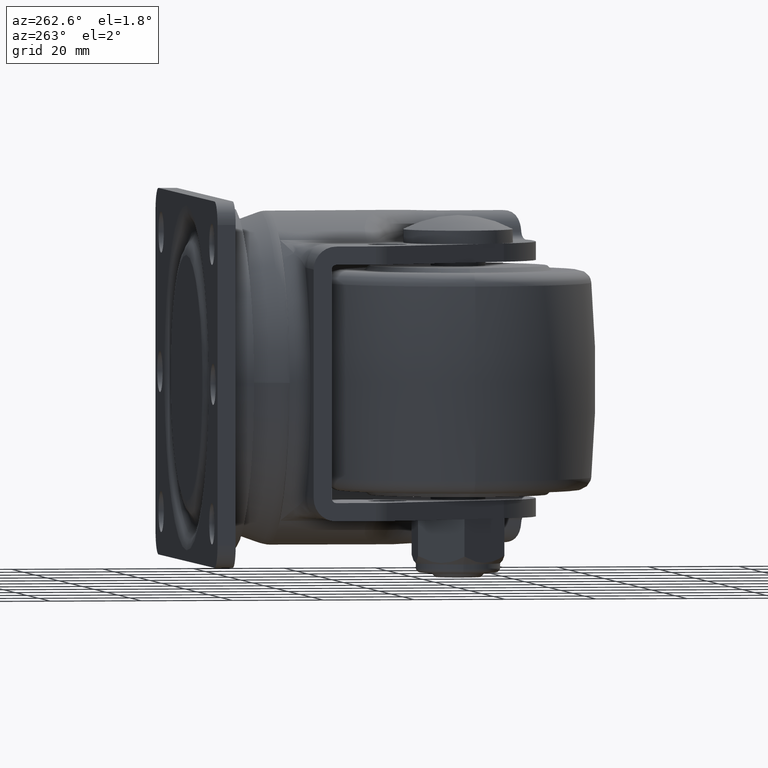
[diagram: clean part render]
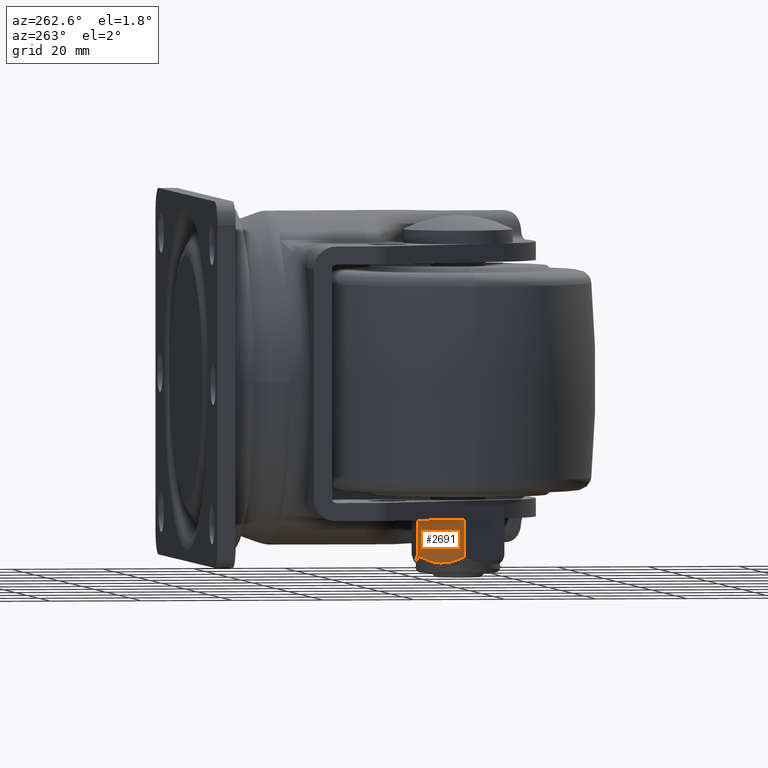
[diagram: same view with one face highlighted and labeled with its STEP entity id]
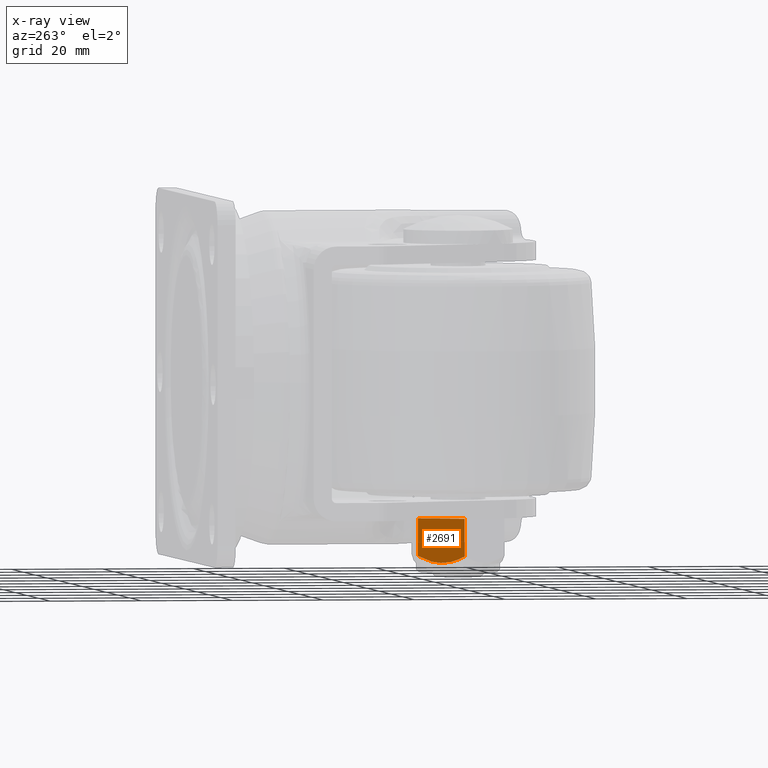
[diagram: x-ray of the same camera — body ghosted, the highlighted face saturated]
A machine part, auxiliary view. The second image highlights one B-rep face of the part: STEP entity #2691.
The next image is the same camera in x-ray: the body ghosted, the highlighted face saturated — about 0% of this face is hidden behind the body in this view.
In plain terms, the highlighted planar face has unit normal (0.866, -0.5, 0).
Its self-contained STEP definition (entity closure, byte-faithful):
#365 = CARTESIAN_POINT ( 'NONE',  ( -6.351581188495198482, 7.998738673127607335, -39.02325596749304992 ) ) ;
#426 = CARTESIAN_POINT ( 'NONE',  ( -8.695956990923257024, 3.938160671287151970, -39.70201385850177189 ) ) ;
#737 = LINE ( 'NONE', #3604, #1427 ) ;
#1151 = ORIENTED_EDGE ( 'NONE', *, *, #3512, .F. ) ;
#1174 = VECTOR ( 'NONE', #6055, 1000.000000000000000 ) ;
#1381 = CARTESIAN_POINT ( 'NONE',  ( -10.53858812322459571, 0.7466299305330630354, -38.66141187677549595 ) ) ;
#1427 = VECTOR ( 'NONE', #2043, 1000.000000000000000 ) ;
#1571 = EDGE_CURVE ( 'NONE', #5360, #2621, #3037, .T. ) ;
#1633 = VECTOR ( 'NONE', #1970, 1000.000000000000000 ) ;
#1684 = ORIENTED_EDGE ( 'NONE', *, *, #6154, .T. ) ;
#1753 = CARTESIAN_POINT ( 'NONE',  ( -10.96965511460288845, 3.469446951953614189E-15, -30.00000000000000000 ) ) ;
#1896 = CARTESIAN_POINT ( 'NONE',  ( -5.484827557301447776, 9.500000000000001776, -38.23034488539710907 ) ) ;
#1970 = DIRECTION ( 'NONE',  ( 0.4999999999999998335, 0.8660254037844387076, 0.000000000000000000 ) ) ;
#2033 = LINE ( 'NONE', #2565, #1174 ) ;
#2043 = DIRECTION ( 'NONE',  ( -0.000000000000000000, -0.000000000000000000, 1.000000000000000000 ) ) ;
#2160 = VERTEX_POINT ( 'NONE', #1753 ) ;
#2355 = EDGE_LOOP ( 'NONE', ( #1151, #6063, #1684, #2779 ) ) ;
#2384 = CARTESIAN_POINT ( 'NONE',  ( -7.032407236050312704, 6.819513367645843260, -39.41371148533895763 ) ) ;
#2427 = FACE_OUTER_BOUND ( 'NONE', #2355, .T. ) ;
#2444 = CARTESIAN_POINT ( 'NONE',  ( -10.09474281818228825, 1.515392549567244895, -39.03103012005281869 ) ) ;
#2565 = CARTESIAN_POINT ( 'NONE',  ( -5.484827557301447776, 9.500000000000001776, -41.99999999999999289 ) ) ;
#2621 = VERTEX_POINT ( 'NONE', #4310 ) ;
#2691 = ADVANCED_FACE ( 'NONE', ( #2427 ), #2957, .F. ) ;
#2779 = ORIENTED_EDGE ( 'NONE', *, *, #6393, .T. ) ;
#2948 = CARTESIAN_POINT ( 'NONE',  ( -5.913371250152326120, 8.757740550719091743, -38.65888857824798919 ) ) ;
#2957 = PLANE ( 'NONE',  #5946 ) ;
#3037 = B_SPLINE_CURVE_WITH_KNOTS ( 'NONE', 3,
 ( #4897, #2948, #365, #2384, #5908, #3455, #5452, #426, #5417, #2444, #1381, #3419 ),
 .UNSPECIFIED., .F., .F.,
 ( 4, 2, 2, 2, 2, 4 ),
 ( 2.544312669948822529E-07, 0.002833058757995987869, 0.004249460921360481876, 0.005665863084724975449, 0.008498667411453964329, 0.01133147173818295494 ),
 .UNSPECIFIED. ) ;
#3419 = CARTESIAN_POINT ( 'NONE',  ( -10.96965511460288845, 4.710906814490390773E-15, -38.23034488539710907 ) ) ;
#3455 = CARTESIAN_POINT ( 'NONE',  ( -7.734875335119027362, 5.602802929362505679, -39.66048072191472329 ) ) ;
#3512 = EDGE_CURVE ( 'NONE', #5360, #4473, #2033, .T. ) ;
#3604 = CARTESIAN_POINT ( 'NONE',  ( -10.96965511460288845, 5.453716210842205741E-15, -41.99999999999999289 ) ) ;
#4310 = CARTESIAN_POINT ( 'NONE',  ( -10.96965511460288845, 4.710906814490390773E-15, -38.23034488539710907 ) ) ;
#4457 = LINE ( 'NONE', #6525, #1633 ) ;
#4473 = VERTEX_POINT ( 'NONE', #6024 ) ;
#4897 = CARTESIAN_POINT ( 'NONE',  ( -5.484827557301447776, 9.500000000000001776, -38.23034488539710907 ) ) ;
#4970 = CARTESIAN_POINT ( 'NONE',  ( -10.96965511460288845, 5.453716210842205741E-15, -41.99999999999999289 ) ) ;
#5360 = VERTEX_POINT ( 'NONE', #1896 ) ;
#5417 = CARTESIAN_POINT ( 'NONE',  ( -9.166592578208671682, 3.122995922258796853, -39.55701165094235705 ) ) ;
#5452 = CARTESIAN_POINT ( 'NONE',  ( -7.977740113271946321, 5.182148794232698030, -39.69896088518292743 ) ) ;
#5491 = DIRECTION ( 'NONE',  ( 0.4999999999999998335, 0.8660254037844387076, 0.000000000000000000 ) ) ;
#5908 = CARTESIAN_POINT ( 'NONE',  ( -7.263309102867534506, 6.419579602755915104, -39.51757301386822263 ) ) ;
#5946 = AXIS2_PLACEMENT_3D ( 'NONE', #4970, #5982, #5491 ) ;
#5982 = DIRECTION ( 'NONE',  ( 0.8660254037844387076, -0.4999999999999998335, 0.000000000000000000 ) ) ;
#6024 = CARTESIAN_POINT ( 'NONE',  ( -5.484827557301447776, 9.500000000000001776, -30.00000000000000000 ) ) ;
#6055 = DIRECTION ( 'NONE',  ( -0.000000000000000000, -0.000000000000000000, 1.000000000000000000 ) ) ;
#6063 = ORIENTED_EDGE ( 'NONE', *, *, #1571, .T. ) ;
#6154 = EDGE_CURVE ( 'NONE', #2621, #2160, #737, .T. ) ;
#6393 = EDGE_CURVE ( 'NONE', #2160, #4473, #4457, .T. ) ;
#6525 = CARTESIAN_POINT ( 'NONE',  ( -10.96965511460288845, 5.453716210842205741E-15, -30.00000000000000000 ) ) ;